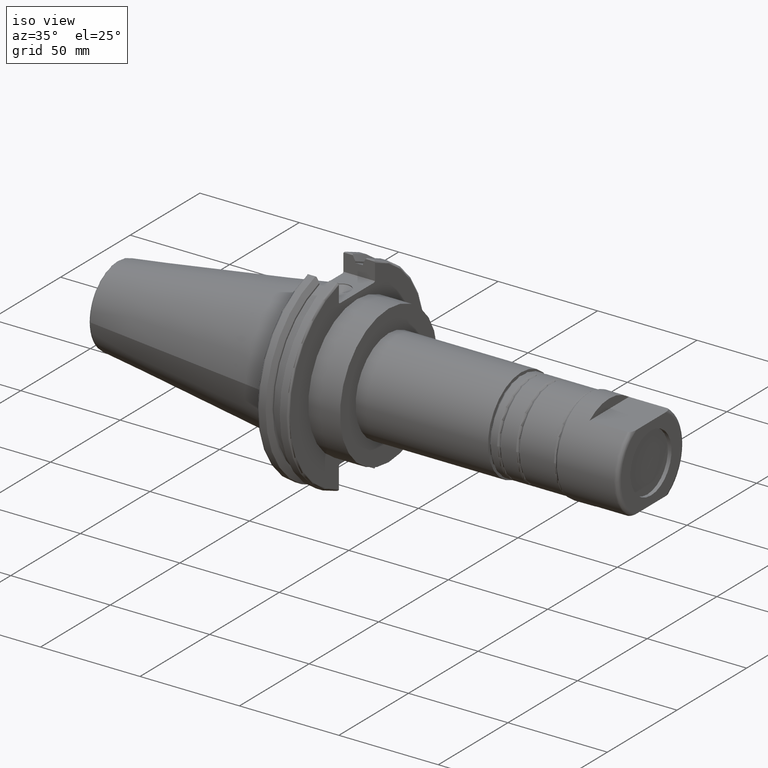
[diagram: clean part render]
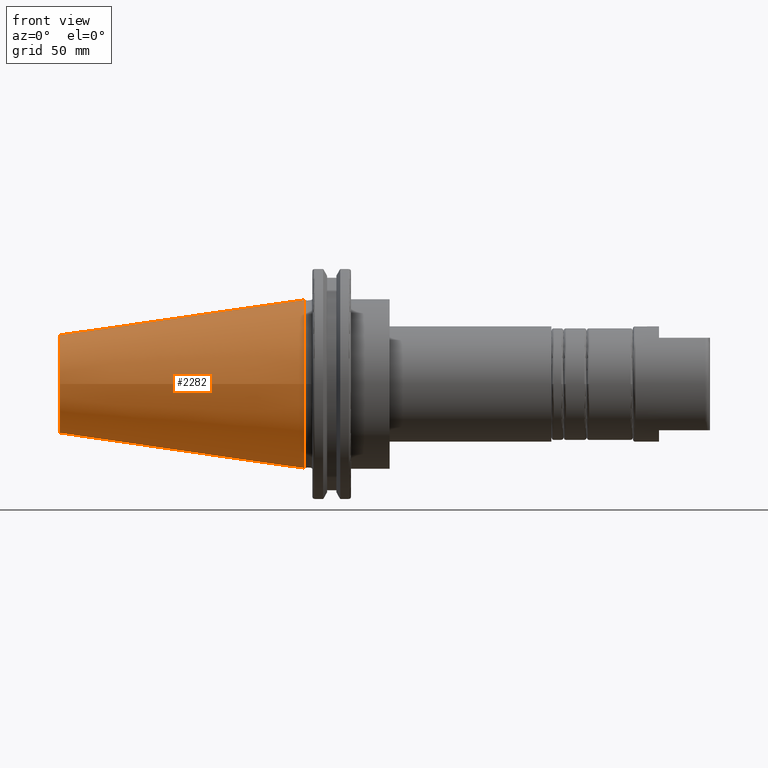
[diagram: tour spotlight — one face highlighted and labeled with its STEP entity id]
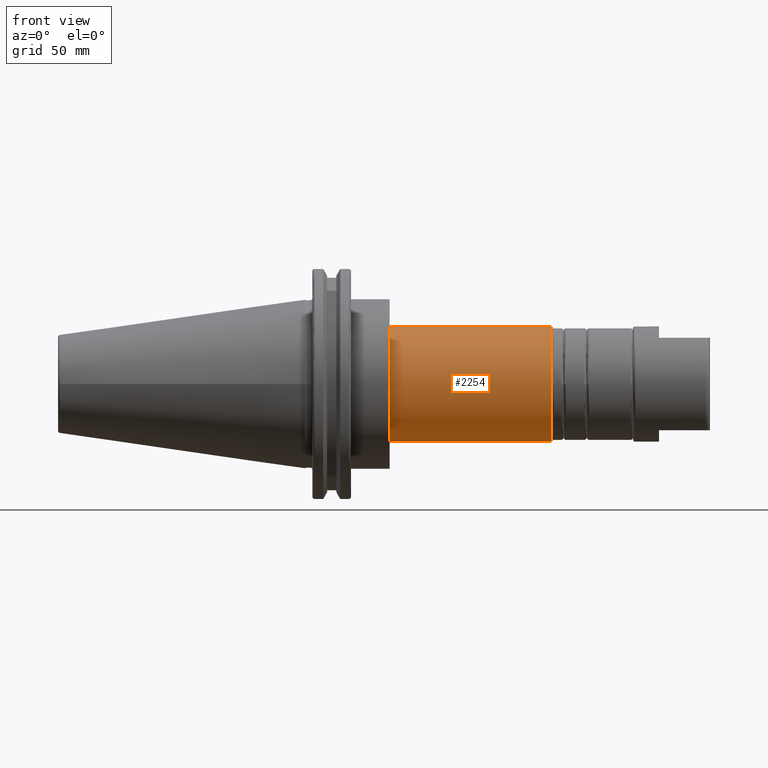
[diagram: tour spotlight — one face highlighted and labeled with its STEP entity id]
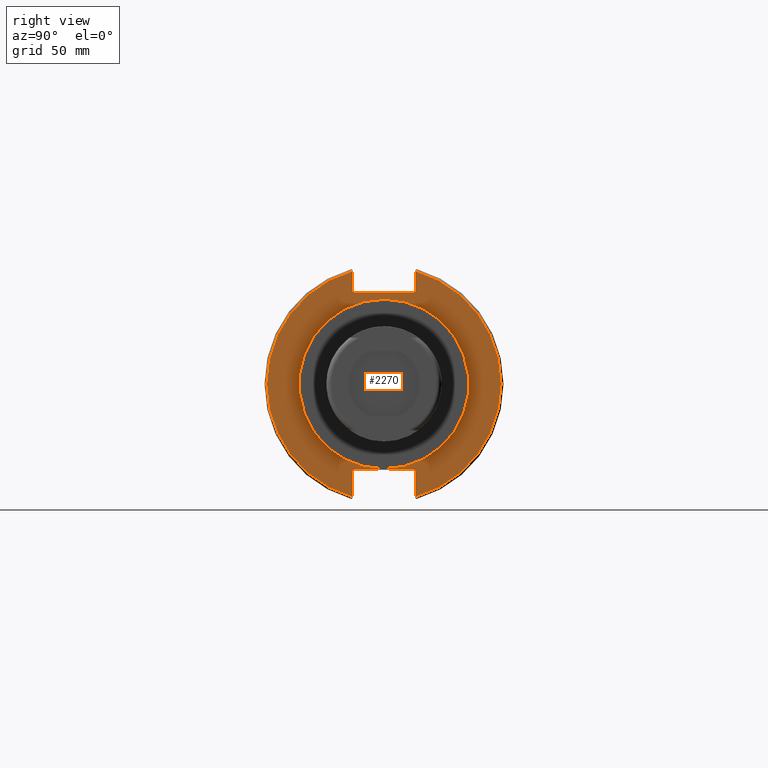
[diagram: tour spotlight — one face highlighted and labeled with its STEP entity id]
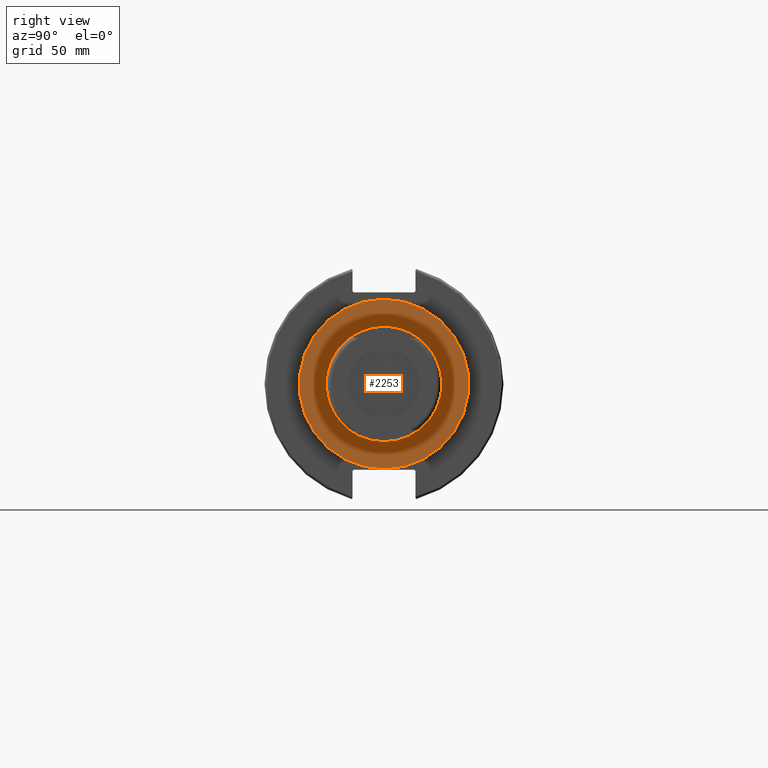
[diagram: tour spotlight — one face highlighted and labeled with its STEP entity id]
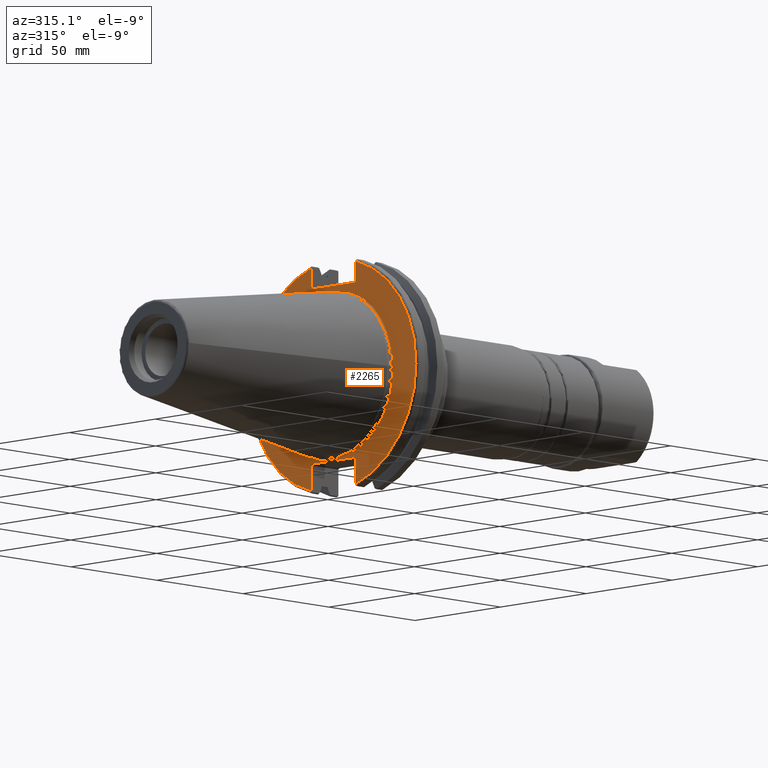
[diagram: tour spotlight — one face highlighted and labeled with its STEP entity id]
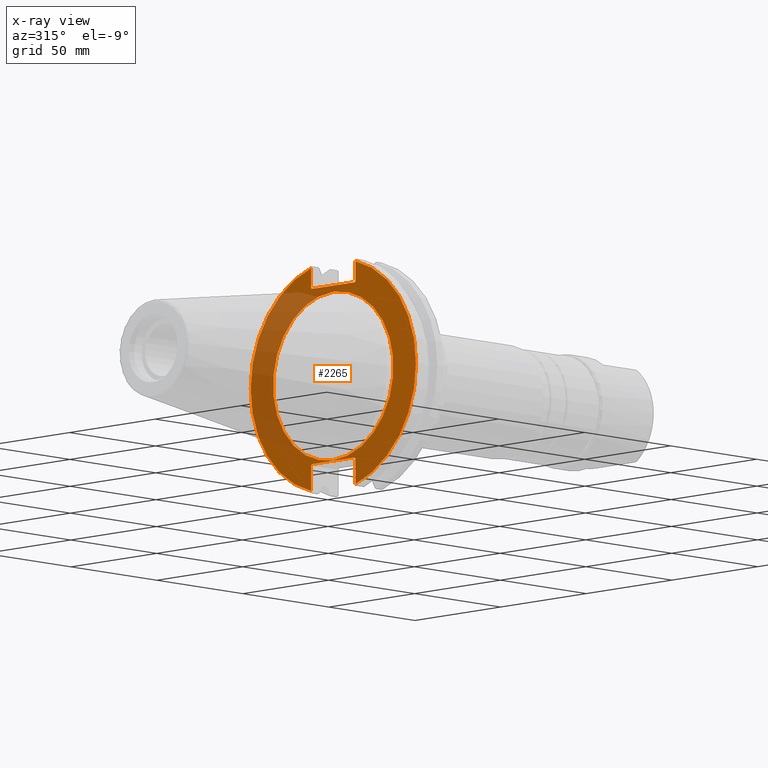
[diagram: x-ray of the same camera — body ghosted, this tour face saturated]
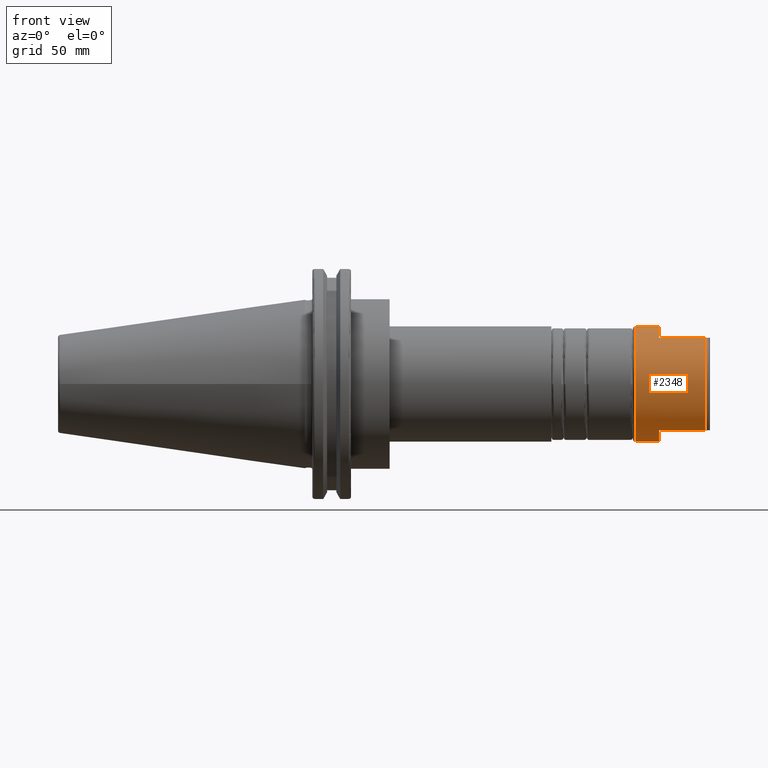
[diagram: tour spotlight — one face highlighted and labeled with its STEP entity id]
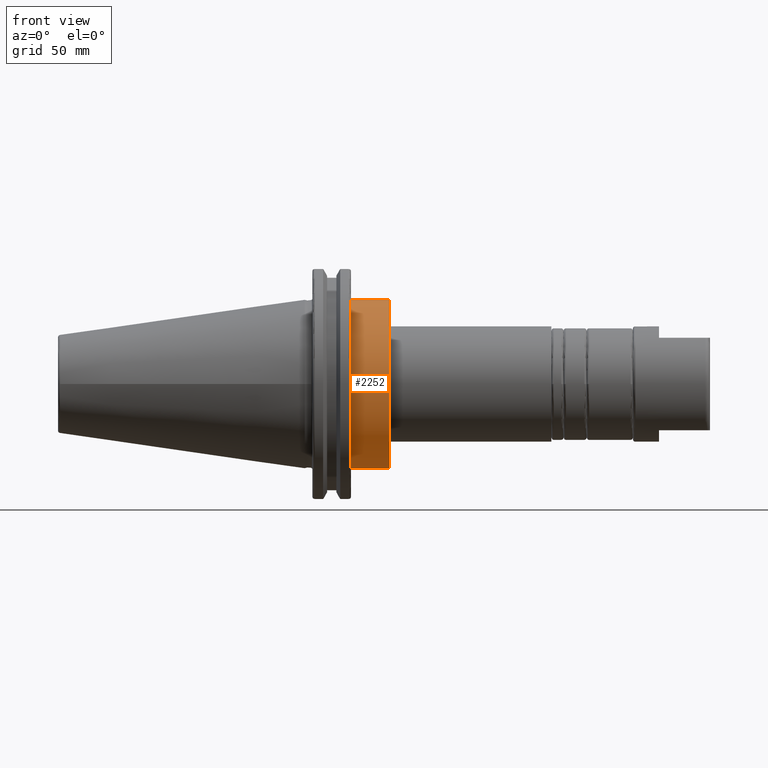
[diagram: tour spotlight — one face highlighted and labeled with its STEP entity id]
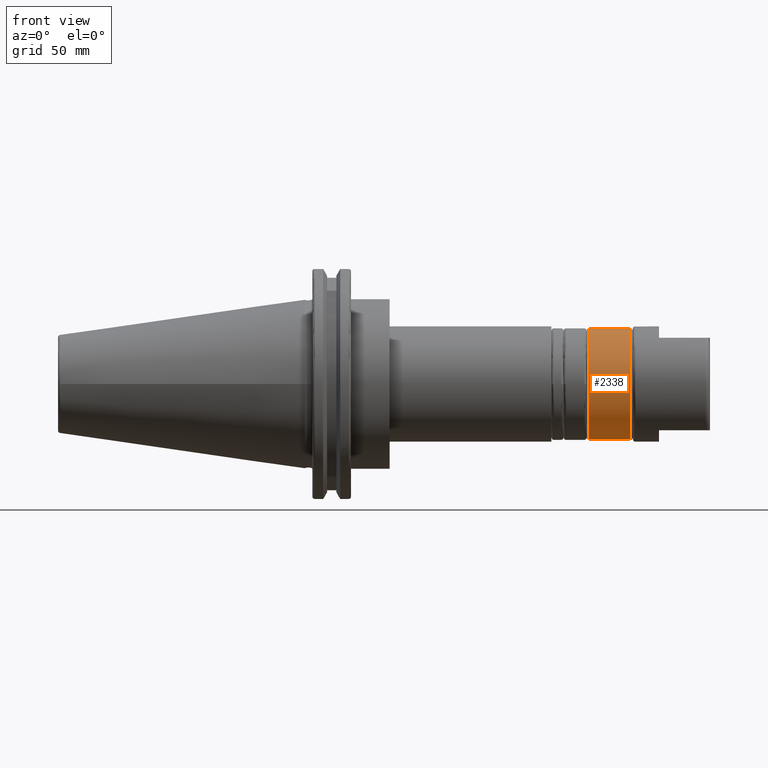
[diagram: tour spotlight — one face highlighted and labeled with its STEP entity id]
A machine part: a face-by-face anatomy tour. The part has 110 B-rep faces; the first image is the clean iso view, then the 8 largest visible faces are spotlighted one at a time (largest first), each with its STEP entity span.

Face 1 — front view, entity #2282. In plain terms, the highlighted conical surface has half-angle 8.297 deg.
Definition (entity closure, byte-faithful):
#544=CONICAL_SURFACE('',#2624,27.5166666666666,0.14481249823894);
#597=CIRCLE('',#2618,20.233121911427);
#598=CIRCLE('',#2619,20.233121911427);
#602=CIRCLE('',#2625,34.925);
#760=FACE_OUTER_BOUND('',#877,.T.);
#877=EDGE_LOOP('',(#1846,#1847,#1848,#1849,#1850));
#1021=LINE('',#4009,#1151);
#1151=VECTOR('',#3065,27.5166666666666);
#1309=VERTEX_POINT('',#3996);
#1310=VERTEX_POINT('',#3997);
#1313=VERTEX_POINT('',#4007);
#1512=EDGE_CURVE('',#1309,#1310,#597,.T.);
#1513=EDGE_CURVE('',#1310,#1309,#598,.T.);
#1517=EDGE_CURVE('',#1313,#1313,#602,.T.);
#1518=EDGE_CURVE('',#1313,#1310,#1021,.T.);
#1846=ORIENTED_EDGE('',*,*,#1517,.F.);
#1847=ORIENTED_EDGE('',*,*,#1518,.T.);
#1848=ORIENTED_EDGE('',*,*,#1512,.F.);
#1849=ORIENTED_EDGE('',*,*,#1513,.F.);
#1850=ORIENTED_EDGE('',*,*,#1518,.F.);
#2282=ADVANCED_FACE('',(#760),#544,.T.);
#2618=AXIS2_PLACEMENT_3D('',#3998,#3049,#3050);
#2619=AXIS2_PLACEMENT_3D('',#3999,#3051,#3052);
#2624=AXIS2_PLACEMENT_3D('',#4006,#3061,#3062);
#2625=AXIS2_PLACEMENT_3D('',#4008,#3063,#3064);
#3049=DIRECTION('center_axis',(-1.,0.,0.));
#3050=DIRECTION('ref_axis',(0.,-1.,3.06161699786838E-17));
#3051=DIRECTION('center_axis',(-1.,0.,0.));
#3052=DIRECTION('ref_axis',(0.,-1.,3.06161699786838E-17));
#3061=DIRECTION('center_axis',(1.,0.,0.));
#3062=DIRECTION('ref_axis',(0.,1.,0.));
#3063=DIRECTION('center_axis',(1.,0.,0.));
#3064=DIRECTION('ref_axis',(0.,0.,-1.));
#3065=DIRECTION('',(-0.989532981063281,0.144306893071729,1.76724974695192E-17));
#3996=CARTESIAN_POINT('',(-100.744306893072,-2.47784279855872E-15,20.233121911427));
#3997=CARTESIAN_POINT('',(-100.744306893072,-20.233121911427,-2.47784279855872E-15));
#3998=CARTESIAN_POINT('Origin',(-100.744306893072,0.,-3.09730349819841E-15));
#3999=CARTESIAN_POINT('Origin',(-100.744306893072,0.,-3.09730349819841E-15));
#4006=CARTESIAN_POINT('Origin',(-50.8,0.,0.));
#4007=CARTESIAN_POINT('',(-8.88178419700125E-15,-34.925,-4.27707894602213E-15));
#4008=CARTESIAN_POINT('Origin',(0.,0.,0.));
#4009=CARTESIAN_POINT('',(-50.8,-27.5166666666666,-3.3698197756538E-15));

Face 2 — front view, entity #2254. In plain terms, the highlighted cylindrical surface (bore or boss wall) has radius 23.75 mm, axis along (1, 0, 0).
Definition (entity closure, byte-faithful):
#573=CIRCLE('',#2567,23.75);
#574=CIRCLE('',#2569,23.75);
#701=CYLINDRICAL_SURFACE('',#2568,23.75);
#732=FACE_OUTER_BOUND('',#843,.T.);
#843=EDGE_LOOP('',(#1687,#1688,#1689,#1690));
#971=LINE('',#3681,#1101);
#1101=VECTOR('',#2903,23.75);
#1232=VERTEX_POINT('',#3676);
#1233=VERTEX_POINT('',#3679);
#1412=EDGE_CURVE('',#1232,#1232,#573,.T.);
#1413=EDGE_CURVE('',#1233,#1233,#574,.T.);
#1414=EDGE_CURVE('',#1233,#1232,#971,.T.);
#1687=ORIENTED_EDGE('',*,*,#1413,.F.);
#1688=ORIENTED_EDGE('',*,*,#1414,.T.);
#1689=ORIENTED_EDGE('',*,*,#1412,.T.);
#1690=ORIENTED_EDGE('',*,*,#1414,.F.);
#2254=ADVANCED_FACE('',(#732),#701,.T.);
#2567=AXIS2_PLACEMENT_3D('',#3677,#2897,#2898);
#2568=AXIS2_PLACEMENT_3D('',#3678,#2899,#2900);
#2569=AXIS2_PLACEMENT_3D('',#3680,#2901,#2902);
#2897=DIRECTION('center_axis',(1.,0.,0.));
#2898=DIRECTION('ref_axis',(0.,0.,-1.));
#2899=DIRECTION('center_axis',(1.,0.,0.));
#2900=DIRECTION('ref_axis',(0.,0.,1.));
#2901=DIRECTION('center_axis',(1.,0.,0.));
#2902=DIRECTION('ref_axis',(0.,0.,-1.));
#2903=DIRECTION('',(-1.,0.,0.));
#3676=CARTESIAN_POINT('',(35.,2.90853614797497E-15,-23.75));
#3677=CARTESIAN_POINT('Origin',(35.,0.,0.));
#3678=CARTESIAN_POINT('Origin',(68.3,0.,0.));
#3679=CARTESIAN_POINT('',(101.6,2.90853614797497E-15,-23.75));
#3680=CARTESIAN_POINT('Origin',(101.6,0.,0.));
#3681=CARTESIAN_POINT('',(68.3,2.90853614797497E-15,-23.75));

Face 3 — right view, entity #2270. In plain terms, the highlighted planar face has unit normal (1, 0, 0).
Definition (entity closure, byte-faithful):
#557=FACE_BOUND('',#864,.T.);
#572=CIRCLE('',#2565,34.925);
#590=CIRCLE('',#2598,48.2125);
#592=CIRCLE('',#2603,48.2125);
#748=FACE_OUTER_BOUND('',#863,.T.);
#863=EDGE_LOOP('',(#1768,#1769,#1770,#1771,#1772,#1773,#1774,#1775,#1776,
#1777,#1778,#1779));
#864=EDGE_LOOP('',(#1780));
#991=LINE('',#3798,#1121);
#997=LINE('',#3824,#1127);
#998=LINE('',#3826,#1128);
#999=LINE('',#3828,#1129);
#1000=LINE('',#3830,#1130);
#1001=LINE('',#3832,#1131);
#1002=LINE('',#3836,#1132);
#1003=LINE('',#3838,#1133);
#1004=LINE('',#3840,#1134);
#1005=LINE('',#3841,#1135);
#1121=VECTOR('',#2987,10.);
#1127=VECTOR('',#2995,10.);
#1128=VECTOR('',#2996,10.);
#1129=VECTOR('',#2997,10.);
#1130=VECTOR('',#2998,10.);
#1131=VECTOR('',#2999,10.);
#1132=VECTOR('',#3002,10.);
#1133=VECTOR('',#3003,10.);
#1134=VECTOR('',#3004,10.);
#1135=VECTOR('',#3005,10.);
#1231=VERTEX_POINT('',#3672);
#1260=VERTEX_POINT('',#3753);
#1261=VERTEX_POINT('',#3760);
#1267=VERTEX_POINT('',#3797);
#1274=VERTEX_POINT('',#3823);
#1275=VERTEX_POINT('',#3825);
#1276=VERTEX_POINT('',#3827);
#1277=VERTEX_POINT('',#3829);
#1278=VERTEX_POINT('',#3831);
#1279=VERTEX_POINT('',#3833);
#1280=VERTEX_POINT('',#3835);
#1281=VERTEX_POINT('',#3837);
#1282=VERTEX_POINT('',#3839);
#1411=EDGE_CURVE('',#1231,#1231,#572,.T.);
#1448=EDGE_CURVE('',#1260,#1261,#590,.T.);
#1456=EDGE_CURVE('',#1267,#1261,#991,.T.);
#1465=EDGE_CURVE('',#1260,#1274,#997,.T.);
#1466=EDGE_CURVE('',#1275,#1274,#998,.T.);
#1467=EDGE_CURVE('',#1275,#1276,#999,.T.);
#1468=EDGE_CURVE('',#1277,#1276,#1000,.T.);
#1469=EDGE_CURVE('',#1277,#1278,#1001,.T.);
#1470=EDGE_CURVE('',#1279,#1278,#592,.T.);
#1471=EDGE_CURVE('',#1279,#1280,#1002,.T.);
#1472=EDGE_CURVE('',#1281,#1280,#1003,.T.);
#1473=EDGE_CURVE('',#1281,#1282,#1004,.T.);
#1474=EDGE_CURVE('',#1267,#1282,#1005,.T.);
#1768=ORIENTED_EDGE('',*,*,#1448,.F.);
#1769=ORIENTED_EDGE('',*,*,#1465,.T.);
#1770=ORIENTED_EDGE('',*,*,#1466,.F.);
#1771=ORIENTED_EDGE('',*,*,#1467,.T.);
#1772=ORIENTED_EDGE('',*,*,#1468,.F.);
#1773=ORIENTED_EDGE('',*,*,#1469,.T.);
#1774=ORIENTED_EDGE('',*,*,#1470,.F.);
#1775=ORIENTED_EDGE('',*,*,#1471,.T.);
#1776=ORIENTED_EDGE('',*,*,#1472,.F.);
#1777=ORIENTED_EDGE('',*,*,#1473,.T.);
#1778=ORIENTED_EDGE('',*,*,#1474,.F.);
#1779=ORIENTED_EDGE('',*,*,#1456,.T.);
#1780=ORIENTED_EDGE('',*,*,#1411,.T.);
#2199=PLANE('',#2602);
#2270=ADVANCED_FACE('',(#748,#557),#2199,.T.);
#2565=AXIS2_PLACEMENT_3D('',#3674,#2893,#2894);
#2598=AXIS2_PLACEMENT_3D('',#3761,#2977,#2978);
#2602=AXIS2_PLACEMENT_3D('',#3822,#2993,#2994);
#2603=AXIS2_PLACEMENT_3D('',#3834,#3000,#3001);
#2893=DIRECTION('center_axis',(-1.,0.,0.));
#2894=DIRECTION('ref_axis',(0.,0.,1.));
#2977=DIRECTION('center_axis',(-1.,0.,0.));
#2978=DIRECTION('ref_axis',(0.,1.,-6.12323399573677E-17));
#2987=DIRECTION('',(0.,0.,-1.));
#2993=DIRECTION('center_axis',(1.,0.,0.));
#2994=DIRECTION('ref_axis',(0.,0.,-1.));
#2995=DIRECTION('',(0.,0.,-1.));
#2996=DIRECTION('',(0.,0.707106781186549,0.707106781186546));
#2997=DIRECTION('',(0.,-1.,0.));
#2998=DIRECTION('',(0.,0.707106781186549,-0.707106781186546));
#2999=DIRECTION('',(0.,0.,1.));
#3000=DIRECTION('center_axis',(-1.,0.,0.));
#3001=DIRECTION('ref_axis',(0.,-1.,1.60812264967664E-16));
#3002=DIRECTION('',(0.,0.,1.));
#3003=DIRECTION('',(0.,-0.707106781186549,-0.707106781186546));
#3004=DIRECTION('',(0.,1.,0.));
#3005=DIRECTION('',(0.,-0.707106781186549,0.707106781186546));
#3672=CARTESIAN_POINT('',(19.05,4.27707894602213E-15,-34.925));
#3674=CARTESIAN_POINT('Origin',(19.05,0.,0.));
#3753=CARTESIAN_POINT('',(19.05,12.95,46.4407434937254));
#3760=CARTESIAN_POINT('',(19.05,12.95,-46.4407434937254));
#3761=CARTESIAN_POINT('Origin',(19.05,0.,0.));
#3797=CARTESIAN_POINT('',(19.05,12.95,-35.806));
#3798=CARTESIAN_POINT('',(19.05,12.95,-17.653));
#3822=CARTESIAN_POINT('Origin',(19.05,0.,0.));
#3823=CARTESIAN_POINT('',(19.05,12.95,38.219));
#3824=CARTESIAN_POINT('',(19.05,12.95,18.8595));
#3825=CARTESIAN_POINT('',(19.05,12.45,37.719));
#3826=CARTESIAN_POINT('',(19.05,0.0327499999999836,25.30175));
#3827=CARTESIAN_POINT('',(19.05,-12.45,37.719));
#3828=CARTESIAN_POINT('',(19.05,0.,37.719));
#3829=CARTESIAN_POINT('',(19.05,-12.95,38.219));
#3830=CARTESIAN_POINT('',(19.05,-0.0327499999999817,25.30175));
#3831=CARTESIAN_POINT('',(19.05,-12.95,46.4407434937254));
#3832=CARTESIAN_POINT('',(19.05,-12.95,18.8595));
#3833=CARTESIAN_POINT('',(19.05,-12.95,-46.4407434937254));
#3834=CARTESIAN_POINT('Origin',(19.05,0.,0.));
#3835=CARTESIAN_POINT('',(19.05,-12.95,-35.806));
#3836=CARTESIAN_POINT('',(19.05,-12.95,-17.653));
#3837=CARTESIAN_POINT('',(19.05,-12.45,-35.306));
#3838=CARTESIAN_POINT('',(19.05,-0.635999999999989,-23.492));
#3839=CARTESIAN_POINT('',(19.05,12.45,-35.306));
#3840=CARTESIAN_POINT('',(19.05,-3.33066907387547E-15,-35.306));
#3841=CARTESIAN_POINT('',(19.05,0.635999999999982,-23.492));

Face 4 — right view, entity #2253. In plain terms, the highlighted planar face has unit normal (1, 0, 0).
Definition (entity closure, byte-faithful):
#552=FACE_BOUND('',#842,.T.);
#571=CIRCLE('',#2564,34.925);
#573=CIRCLE('',#2567,23.75);
#731=FACE_OUTER_BOUND('',#841,.T.);
#841=EDGE_LOOP('',(#1685));
#842=EDGE_LOOP('',(#1686));
#1230=VERTEX_POINT('',#3670);
#1232=VERTEX_POINT('',#3676);
#1409=EDGE_CURVE('',#1230,#1230,#571,.T.);
#1412=EDGE_CURVE('',#1232,#1232,#573,.T.);
#1685=ORIENTED_EDGE('',*,*,#1409,.T.);
#1686=ORIENTED_EDGE('',*,*,#1412,.F.);
#2192=PLANE('',#2566);
#2253=ADVANCED_FACE('',(#731,#552),#2192,.T.);
#2564=AXIS2_PLACEMENT_3D('',#3671,#2890,#2891);
#2566=AXIS2_PLACEMENT_3D('',#3675,#2895,#2896);
#2567=AXIS2_PLACEMENT_3D('',#3677,#2897,#2898);
#2890=DIRECTION('center_axis',(1.,0.,0.));
#2891=DIRECTION('ref_axis',(0.,0.,-1.));
#2895=DIRECTION('center_axis',(1.,0.,0.));
#2896=DIRECTION('ref_axis',(0.,0.,-1.));
#2897=DIRECTION('center_axis',(1.,0.,0.));
#2898=DIRECTION('ref_axis',(0.,0.,-1.));
#3670=CARTESIAN_POINT('',(35.,4.27707894602213E-15,-34.925));
#3671=CARTESIAN_POINT('Origin',(35.,0.,0.));
#3675=CARTESIAN_POINT('Origin',(35.,0.,23.75));
#3676=CARTESIAN_POINT('',(35.,2.90853614797497E-15,-23.75));
#3677=CARTESIAN_POINT('Origin',(35.,0.,0.));

Face 5 — auxiliary view, entity #2265. An x-ray twin of the same camera follows (body ghosted, this face saturated) — the face is partly hidden behind the body. In plain terms, the highlighted planar face has unit normal (-1, 0, 0).
Definition (entity closure, byte-faithful):
#556=FACE_BOUND('',#858,.T.);
#585=CIRCLE('',#2590,35.125);
#587=CIRCLE('',#2593,48.2125);
#588=CIRCLE('',#2594,48.2125);
#743=FACE_OUTER_BOUND('',#857,.T.);
#857=EDGE_LOOP('',(#1728,#1729,#1730,#1731,#1732,#1733,#1734,#1735,#1736,
#1737,#1738,#1739));
#858=EDGE_LOOP('',(#1740));
#978=LINE('',#3727,#1108);
#979=LINE('',#3729,#1109);
#980=LINE('',#3731,#1110);
#981=LINE('',#3733,#1111);
#982=LINE('',#3735,#1112);
#983=LINE('',#3739,#1113);
#984=LINE('',#3741,#1114);
#985=LINE('',#3743,#1115);
#986=LINE('',#3745,#1116);
#987=LINE('',#3746,#1117);
#1108=VECTOR('',#2958,10.);
#1109=VECTOR('',#2959,10.);
#1110=VECTOR('',#2960,10.);
#1111=VECTOR('',#2961,10.);
#1112=VECTOR('',#2962,10.);
#1113=VECTOR('',#2965,10.);
#1114=VECTOR('',#2966,10.);
#1115=VECTOR('',#2967,10.);
#1116=VECTOR('',#2968,10.);
#1117=VECTOR('',#2969,10.);
#1245=VERTEX_POINT('',#3718);
#1246=VERTEX_POINT('',#3723);
#1247=VERTEX_POINT('',#3724);
#1248=VERTEX_POINT('',#3726);
#1249=VERTEX_POINT('',#3728);
#1250=VERTEX_POINT('',#3730);
#1251=VERTEX_POINT('',#3732);
#1252=VERTEX_POINT('',#3734);
#1253=VERTEX_POINT('',#3736);
#1254=VERTEX_POINT('',#3738);
#1255=VERTEX_POINT('',#3740);
#1256=VERTEX_POINT('',#3742);
#1257=VERTEX_POINT('',#3744);
#1431=EDGE_CURVE('',#1245,#1245,#585,.T.);
#1433=EDGE_CURVE('',#1246,#1247,#587,.T.);
#1434=EDGE_CURVE('',#1246,#1248,#978,.T.);
#1435=EDGE_CURVE('',#1249,#1248,#979,.T.);
#1436=EDGE_CURVE('',#1249,#1250,#980,.T.);
#1437=EDGE_CURVE('',#1251,#1250,#981,.T.);
#1438=EDGE_CURVE('',#1251,#1252,#982,.T.);
#1439=EDGE_CURVE('',#1253,#1252,#588,.T.);
#1440=EDGE_CURVE('',#1253,#1254,#983,.T.);
#1441=EDGE_CURVE('',#1255,#1254,#984,.T.);
#1442=EDGE_CURVE('',#1255,#1256,#985,.T.);
#1443=EDGE_CURVE('',#1257,#1256,#986,.T.);
#1444=EDGE_CURVE('',#1257,#1247,#987,.T.);
#1728=ORIENTED_EDGE('',*,*,#1433,.F.);
#1729=ORIENTED_EDGE('',*,*,#1434,.T.);
#1730=ORIENTED_EDGE('',*,*,#1435,.F.);
#1731=ORIENTED_EDGE('',*,*,#1436,.T.);
#1732=ORIENTED_EDGE('',*,*,#1437,.F.);
#1733=ORIENTED_EDGE('',*,*,#1438,.T.);
#1734=ORIENTED_EDGE('',*,*,#1439,.F.);
#1735=ORIENTED_EDGE('',*,*,#1440,.T.);
#1736=ORIENTED_EDGE('',*,*,#1441,.F.);
#1737=ORIENTED_EDGE('',*,*,#1442,.T.);
#1738=ORIENTED_EDGE('',*,*,#1443,.F.);
#1739=ORIENTED_EDGE('',*,*,#1444,.T.);
#1740=ORIENTED_EDGE('',*,*,#1431,.F.);
#2196=PLANE('',#2592);
#2265=ADVANCED_FACE('',(#743,#556),#2196,.T.);
#2590=AXIS2_PLACEMENT_3D('',#3720,#2950,#2951);
#2592=AXIS2_PLACEMENT_3D('',#3722,#2954,#2955);
#2593=AXIS2_PLACEMENT_3D('',#3725,#2956,#2957);
#2594=AXIS2_PLACEMENT_3D('',#3737,#2963,#2964);
#2950=DIRECTION('center_axis',(-1.,0.,0.));
#2951=DIRECTION('ref_axis',(0.,-1.,1.83697019872103E-16));
#2954=DIRECTION('center_axis',(-1.,0.,0.));
#2955=DIRECTION('ref_axis',(0.,0.,1.));
#2956=DIRECTION('center_axis',(1.,0.,0.));
#2957=DIRECTION('ref_axis',(0.,-1.,1.60812264967664E-16));
#2958=DIRECTION('',(0.,0.,-1.));
#2959=DIRECTION('',(0.,-0.707106781186549,0.707106781186546));
#2960=DIRECTION('',(0.,1.,0.));
#2961=DIRECTION('',(0.,-0.707106781186549,-0.707106781186546));
#2962=DIRECTION('',(0.,0.,1.));
#2963=DIRECTION('center_axis',(1.,0.,0.));
#2964=DIRECTION('ref_axis',(0.,1.,-6.12323399573677E-17));
#2965=DIRECTION('',(0.,0.,1.));
#2966=DIRECTION('',(0.,0.707106781186549,-0.707106781186546));
#2967=DIRECTION('',(0.,-1.,0.));
#2968=DIRECTION('',(0.,0.707106781186549,0.707106781186546));
#2969=DIRECTION('',(0.,0.,-1.));
#3718=CARTESIAN_POINT('',(3.175,-4.30157188200508E-15,35.125));
#3720=CARTESIAN_POINT('Origin',(3.175,0.,0.));
#3722=CARTESIAN_POINT('Origin',(3.175,49.2125,0.));
#3723=CARTESIAN_POINT('',(3.175,-12.95,46.4407434937254));
#3724=CARTESIAN_POINT('',(3.175,-12.95,-46.4407434937254));
#3725=CARTESIAN_POINT('Origin',(3.175,0.,0.));
#3726=CARTESIAN_POINT('',(3.175,-12.95,38.219));
#3727=CARTESIAN_POINT('',(3.175,-12.95,18.8595));
#3728=CARTESIAN_POINT('',(3.175,-12.45,37.719));
#3729=CARTESIAN_POINT('',(3.175,12.2703750000001,12.998625));
#3730=CARTESIAN_POINT('',(3.175,12.45,37.719));
#3731=CARTESIAN_POINT('',(3.175,24.60625,37.719));
#3732=CARTESIAN_POINT('',(3.175,12.95,38.219));
#3733=CARTESIAN_POINT('',(3.175,12.335875,37.604875));
#3734=CARTESIAN_POINT('',(3.175,12.95,46.4407434937254));
#3735=CARTESIAN_POINT('',(3.175,12.95,18.8595));
#3736=CARTESIAN_POINT('',(3.175,12.95,-46.4407434937254));
#3737=CARTESIAN_POINT('Origin',(3.175,0.,0.));
#3738=CARTESIAN_POINT('',(3.175,12.95,-35.806));
#3739=CARTESIAN_POINT('',(3.175,12.95,-17.653));
#3740=CARTESIAN_POINT('',(3.175,12.45,-35.306));
#3741=CARTESIAN_POINT('',(3.175,12.939125,-35.795125));
#3742=CARTESIAN_POINT('',(3.175,-12.45,-35.306));
#3743=CARTESIAN_POINT('',(3.175,24.60625,-35.306));
#3744=CARTESIAN_POINT('',(3.175,-12.95,-35.806));
#3745=CARTESIAN_POINT('',(3.175,11.6671250000001,-11.188875));
#3746=CARTESIAN_POINT('',(3.175,-12.95,-17.653));

Face 6 — front view, entity #2348. In plain terms, the highlighted cylindrical surface (bore or boss wall) has radius 23.75 mm, axis along (1, 0, 0).
Definition (entity closure, byte-faithful):
#662=CIRCLE('',#2795,23.75);
#663=CIRCLE('',#2797,23.75);
#664=CIRCLE('',#2798,23.75);
#665=CIRCLE('',#2799,23.75);
#666=CIRCLE('',#2800,23.75);
#667=CIRCLE('',#2801,23.75);
#668=CIRCLE('',#2802,23.75);
#723=CYLINDRICAL_SURFACE('',#2796,23.75);
#826=FACE_OUTER_BOUND('',#951,.T.);
#951=EDGE_LOOP('',(#2143,#2144,#2145,#2146,#2147,#2148,#2149,#2150,#2151,
#2152,#2153,#2154,#2155));
#1083=LINE('',#4557,#1213);
#1085=LINE('',#4560,#1215);
#1086=LINE('',#4567,#1216);
#1087=LINE('',#4574,#1217);
#1088=LINE('',#4578,#1218);
#1213=VECTOR('',#3463,10.);
#1215=VECTOR('',#3465,10.);
#1216=VECTOR('',#3474,23.75);
#1217=VECTOR('',#3481,10.);
#1218=VECTOR('',#3484,10.);
#1380=VERTEX_POINT('',#4532);
#1382=VERTEX_POINT('',#4545);
#1383=VERTEX_POINT('',#4556);
#1384=VERTEX_POINT('',#4558);
#1385=VERTEX_POINT('',#4564);
#1386=VERTEX_POINT('',#4566);
#1387=VERTEX_POINT('',#4568);
#1388=VERTEX_POINT('',#4571);
#1389=VERTEX_POINT('',#4573);
#1390=VERTEX_POINT('',#4575);
#1391=VERTEX_POINT('',#4577);
#1637=EDGE_CURVE('',#1383,#1382,#1083,.T.);
#1639=EDGE_CURVE('',#1380,#1384,#1085,.T.);
#1640=EDGE_CURVE('',#1384,#1383,#662,.T.);
#1641=EDGE_CURVE('',#1385,#1382,#663,.T.);
#1642=EDGE_CURVE('',#1385,#1386,#1086,.T.);
#1643=EDGE_CURVE('',#1387,#1386,#664,.T.);
#1644=EDGE_CURVE('',#1386,#1387,#665,.T.);
#1645=EDGE_CURVE('',#1388,#1385,#666,.T.);
#1646=EDGE_CURVE('',#1388,#1389,#1087,.T.);
#1647=EDGE_CURVE('',#1389,#1390,#667,.T.);
#1648=EDGE_CURVE('',#1390,#1391,#1088,.T.);
#1649=EDGE_CURVE('',#1380,#1391,#668,.T.);
#2143=ORIENTED_EDGE('',*,*,#1639,.T.);
#2144=ORIENTED_EDGE('',*,*,#1640,.T.);
#2145=ORIENTED_EDGE('',*,*,#1637,.T.);
#2146=ORIENTED_EDGE('',*,*,#1641,.F.);
#2147=ORIENTED_EDGE('',*,*,#1642,.T.);
#2148=ORIENTED_EDGE('',*,*,#1643,.F.);
#2149=ORIENTED_EDGE('',*,*,#1644,.F.);
#2150=ORIENTED_EDGE('',*,*,#1642,.F.);
#2151=ORIENTED_EDGE('',*,*,#1645,.F.);
#2152=ORIENTED_EDGE('',*,*,#1646,.T.);
#2153=ORIENTED_EDGE('',*,*,#1647,.T.);
#2154=ORIENTED_EDGE('',*,*,#1648,.T.);
#2155=ORIENTED_EDGE('',*,*,#1649,.F.);
#2348=ADVANCED_FACE('',(#826),#723,.T.);
#2795=AXIS2_PLACEMENT_3D('',#4562,#3468,#3469);
#2796=AXIS2_PLACEMENT_3D('',#4563,#3470,#3471);
#2797=AXIS2_PLACEMENT_3D('',#4565,#3472,#3473);
#2798=AXIS2_PLACEMENT_3D('',#4569,#3475,#3476);
#2799=AXIS2_PLACEMENT_3D('',#4570,#3477,#3478);
#2800=AXIS2_PLACEMENT_3D('',#4572,#3479,#3480);
#2801=AXIS2_PLACEMENT_3D('',#4576,#3482,#3483);
#2802=AXIS2_PLACEMENT_3D('',#4579,#3485,#3486);
#3463=DIRECTION('',(1.,0.,0.));
#3465=DIRECTION('',(-1.,0.,0.));
#3468=DIRECTION('center_axis',(-1.,0.,0.));
#3469=DIRECTION('ref_axis',(0.,1.,0.));
#3470=DIRECTION('center_axis',(1.,0.,0.));
#3471=DIRECTION('ref_axis',(0.,1.,0.));
#3472=DIRECTION('center_axis',(1.,0.,0.));
#3473=DIRECTION('ref_axis',(0.,-1.,1.83697019872103E-16));
#3474=DIRECTION('',(-1.,0.,0.));
#3475=DIRECTION('center_axis',(-1.,0.,0.));
#3476=DIRECTION('ref_axis',(0.,-1.,1.83697019872103E-16));
#3477=DIRECTION('center_axis',(-1.,0.,0.));
#3478=DIRECTION('ref_axis',(0.,-1.,1.83697019872103E-16));
#3479=DIRECTION('center_axis',(1.,0.,0.));
#3480=DIRECTION('ref_axis',(0.,-1.,1.83697019872103E-16));
#3481=DIRECTION('',(-1.,0.,0.));
#3482=DIRECTION('center_axis',(-1.,0.,0.));
#3483=DIRECTION('ref_axis',(0.,1.,0.));
#3484=DIRECTION('',(1.,0.,0.));
#3485=DIRECTION('center_axis',(1.,0.,0.));
#3486=DIRECTION('ref_axis',(0.,-1.,1.83697019872103E-16));
#4532=CARTESIAN_POINT('',(29.75,14.1830885211931,-19.05));
#4545=CARTESIAN_POINT('',(29.75,-14.1830885211931,-19.05));
#4556=CARTESIAN_POINT('',(10.75,-14.1830885211931,-19.05));
#4557=CARTESIAN_POINT('',(15.875,-14.1830885211931,-19.05));
#4558=CARTESIAN_POINT('',(10.75,14.1830885211931,-19.05));
#4560=CARTESIAN_POINT('',(15.875,14.1830885211931,-19.05));
#4562=CARTESIAN_POINT('Origin',(10.75,0.,0.));
#4563=CARTESIAN_POINT('Origin',(15.875,0.,0.));
#4564=CARTESIAN_POINT('',(29.75,-23.75,-2.90853614797496E-15));
#4565=CARTESIAN_POINT('Origin',(29.75,0.,0.));
#4566=CARTESIAN_POINT('',(0.999999999999999,-23.75,-2.90853614797496E-15));
#4567=CARTESIAN_POINT('',(15.875,-23.75,-2.90853614797496E-15));
#4568=CARTESIAN_POINT('',(0.999999999999996,-2.90853614797496E-15,23.75));
#4569=CARTESIAN_POINT('Origin',(0.999999999999996,0.,0.));
#4570=CARTESIAN_POINT('Origin',(0.999999999999996,0.,0.));
#4571=CARTESIAN_POINT('',(29.75,-14.1830885211931,19.05));
#4572=CARTESIAN_POINT('Origin',(29.75,0.,0.));
#4573=CARTESIAN_POINT('',(10.75,-14.1830885211931,19.05));
#4574=CARTESIAN_POINT('',(15.875,-14.1830885211931,19.05));
#4575=CARTESIAN_POINT('',(10.75,14.1830885211931,19.05));
#4576=CARTESIAN_POINT('Origin',(10.75,0.,0.));
#4577=CARTESIAN_POINT('',(29.75,14.1830885211931,19.05));
#4578=CARTESIAN_POINT('',(15.875,14.1830885211931,19.05));
#4579=CARTESIAN_POINT('Origin',(29.75,0.,0.));

Face 7 — front view, entity #2252. In plain terms, the highlighted cylindrical surface (bore or boss wall) has radius 34.925 mm, axis along (1, 0, 0).
Definition (entity closure, byte-faithful):
#571=CIRCLE('',#2564,34.925);
#572=CIRCLE('',#2565,34.925);
#700=CYLINDRICAL_SURFACE('',#2563,34.925);
#730=FACE_OUTER_BOUND('',#840,.T.);
#840=EDGE_LOOP('',(#1681,#1682,#1683,#1684));
#970=LINE('',#3673,#1100);
#1100=VECTOR('',#2892,34.925);
#1230=VERTEX_POINT('',#3670);
#1231=VERTEX_POINT('',#3672);
#1409=EDGE_CURVE('',#1230,#1230,#571,.T.);
#1410=EDGE_CURVE('',#1230,#1231,#970,.T.);
#1411=EDGE_CURVE('',#1231,#1231,#572,.T.);
#1681=ORIENTED_EDGE('',*,*,#1409,.F.);
#1682=ORIENTED_EDGE('',*,*,#1410,.T.);
#1683=ORIENTED_EDGE('',*,*,#1411,.F.);
#1684=ORIENTED_EDGE('',*,*,#1410,.F.);
#2252=ADVANCED_FACE('',(#730),#700,.T.);
#2563=AXIS2_PLACEMENT_3D('',#3669,#2888,#2889);
#2564=AXIS2_PLACEMENT_3D('',#3671,#2890,#2891);
#2565=AXIS2_PLACEMENT_3D('',#3674,#2893,#2894);
#2888=DIRECTION('center_axis',(1.,0.,0.));
#2889=DIRECTION('ref_axis',(0.,0.,1.));
#2890=DIRECTION('center_axis',(1.,0.,0.));
#2891=DIRECTION('ref_axis',(0.,0.,-1.));
#2892=DIRECTION('',(-1.,0.,0.));
#2893=DIRECTION('center_axis',(-1.,0.,0.));
#2894=DIRECTION('ref_axis',(0.,0.,1.));
#3669=CARTESIAN_POINT('Origin',(27.025,0.,0.));
#3670=CARTESIAN_POINT('',(35.,4.27707894602213E-15,-34.925));
#3671=CARTESIAN_POINT('Origin',(35.,0.,0.));
#3672=CARTESIAN_POINT('',(19.05,4.27707894602213E-15,-34.925));
#3673=CARTESIAN_POINT('',(27.025,4.27707894602213E-15,-34.925));
#3674=CARTESIAN_POINT('Origin',(19.05,0.,0.));

Face 8 — front view, entity #2338. In plain terms, the highlighted cylindrical surface (bore or boss wall) has radius 23 mm, axis along (1, 0, 0).
Definition (entity closure, byte-faithful):
#651=CIRCLE('',#2765,23.);
#652=CIRCLE('',#2766,23.);
#655=CIRCLE('',#2770,23.);
#656=CIRCLE('',#2771,23.);
#721=CYLINDRICAL_SURFACE('',#2769,23.);
#816=FACE_OUTER_BOUND('',#939,.T.);
#939=EDGE_LOOP('',(#2098,#2099,#2100,#2101,#2102,#2103));
#1071=LINE('',#4464,#1201);
#1201=VECTOR('',#3405,23.);
#1365=VERTEX_POINT('',#4453);
#1366=VERTEX_POINT('',#4454);
#1368=VERTEX_POINT('',#4461);
#1369=VERTEX_POINT('',#4462);
#1613=EDGE_CURVE('',#1365,#1366,#651,.T.);
#1614=EDGE_CURVE('',#1366,#1365,#652,.T.);
#1617=EDGE_CURVE('',#1368,#1369,#655,.T.);
#1618=EDGE_CURVE('',#1368,#1366,#1071,.T.);
#1619=EDGE_CURVE('',#1369,#1368,#656,.T.);
#2098=ORIENTED_EDGE('',*,*,#1617,.F.);
#2099=ORIENTED_EDGE('',*,*,#1618,.T.);
#2100=ORIENTED_EDGE('',*,*,#1613,.F.);
#2101=ORIENTED_EDGE('',*,*,#1614,.F.);
#2102=ORIENTED_EDGE('',*,*,#1618,.F.);
#2103=ORIENTED_EDGE('',*,*,#1619,.F.);
#2338=ADVANCED_FACE('',(#816),#721,.T.);
#2765=AXIS2_PLACEMENT_3D('',#4455,#3393,#3394);
#2766=AXIS2_PLACEMENT_3D('',#4456,#3395,#3396);
#2769=AXIS2_PLACEMENT_3D('',#4460,#3401,#3402);
#2770=AXIS2_PLACEMENT_3D('',#4463,#3403,#3404);
#2771=AXIS2_PLACEMENT_3D('',#4465,#3406,#3407);
#3393=DIRECTION('center_axis',(-1.,0.,0.));
#3394=DIRECTION('ref_axis',(0.,-1.,1.83697019872103E-16));
#3395=DIRECTION('center_axis',(-1.,0.,0.));
#3396=DIRECTION('ref_axis',(0.,-1.,1.83697019872103E-16));
#3401=DIRECTION('center_axis',(1.,0.,0.));
#3402=DIRECTION('ref_axis',(0.,1.,0.));
#3403=DIRECTION('center_axis',(1.,0.,0.));
#3404=DIRECTION('ref_axis',(0.,-1.,1.83697019872103E-16));
#3405=DIRECTION('',(-1.,0.,0.));
#3406=DIRECTION('center_axis',(1.,0.,0.));
#3407=DIRECTION('ref_axis',(0.,-1.,1.83697019872103E-16));
#4453=CARTESIAN_POINT('',(-8.525,-2.81668763803891E-15,23.));
#4454=CARTESIAN_POINT('',(-8.525,-23.,-2.81668763803891E-15));
#4455=CARTESIAN_POINT('Origin',(-8.525,0.,0.));
#4456=CARTESIAN_POINT('Origin',(-8.525,0.,0.));
#4460=CARTESIAN_POINT('Origin',(0.,0.,0.));
#4461=CARTESIAN_POINT('',(8.525,-23.,-2.81668763803891E-15));
#4462=CARTESIAN_POINT('',(8.525,-2.81668763803891E-15,23.));
#4463=CARTESIAN_POINT('Origin',(8.525,0.,0.));
#4464=CARTESIAN_POINT('',(0.,-23.,-2.81668763803891E-15));
#4465=CARTESIAN_POINT('Origin',(8.525,0.,0.));